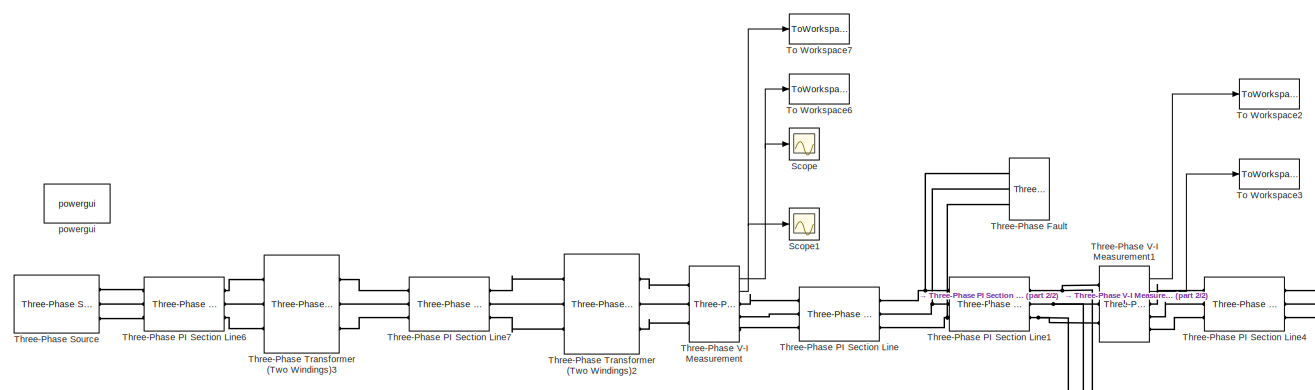
[diagram: root canvas - part 1/2, full width, top band]
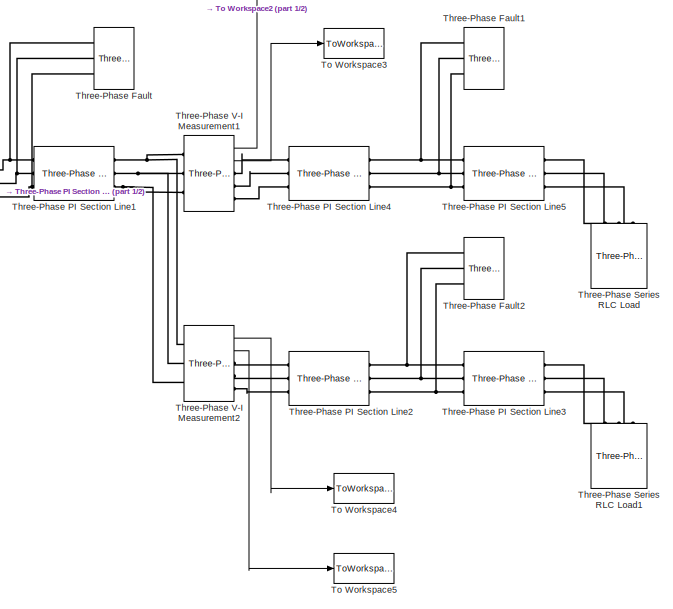
[diagram: root canvas - part 2/2, right side, full height]
MODEL slx_077e51596c99
KIND model
CONFIG AbsTol = auto
CONFIG FixedStep = auto
CONFIG MaxStep = auto
CONFIG MinStep = auto
CONFIG RelTol = 1e-3
CONFIG SampleTimeConstraint = Unconstrained
CONFIG Solver = ode45
CONFIG SolverMode = Auto
CONFIG SolverName = ode45
CONFIG StartTime = 0.0
CONFIG StopTime = 0.160
BLOCK [Scope] Scope
  Floating = off
  NumInputPorts = 1
  Ports = [1]
BLOCK [Scope] Scope1
  Floating = off
  NumInputPorts = 1
  Ports = [1]
  SaveName = ScopeData1
BLOCK [Reference] Three-Phase Fault  REF=powerlib/Elements/Three-Phase Fault
  External = off
  FaultA = off
  FaultB = off
  FaultC = off
  FaultResistance = 0.001
  GroundFault = off
  GroundResistance = 0.01
  InitialStates = 0
  Measurements = None
  Ports = [0, 0, 0, 0, 0, 3]
  SnubberCapacitance = inf
  SnubberResistance = 1e6
  SourceBlock = powerlib/Elements/Three-Phase Fault
  SourceType = Three-Phase Fault
  SwitchStatus = NaN
  SwitchTimes = [3/60  6/60]
BLOCK [Reference] Three-Phase Fault1  REF=powerlib/Elements/Three-Phase Fault
  External = off
  FaultA = off
  FaultB = on
  FaultC = off
  FaultResistance = 1
  GroundFault = on
  GroundResistance = 0.01
  InitialStates = 0
  Measurements = None
  Ports = [0, 0, 0, 0, 0, 3]
  SnubberCapacitance = inf
  SnubberResistance = 1e6
  SourceBlock = powerlib/Elements/Three-Phase Fault
  SourceType = Three-Phase Fault
  SwitchStatus = NaN
  SwitchTimes = [2/60  6/60]
BLOCK [Reference] Three-Phase Fault2  REF=powerlib/Elements/Three-Phase Fault
  External = off
  FaultA = off
  FaultB = off
  FaultC = off
  FaultResistance = 0.001
  GroundFault = off
  GroundResistance = 0.01
  InitialStates = 0
  Measurements = None
  Ports = [0, 0, 0, 0, 0, 3]
  SnubberCapacitance = inf
  SnubberResistance = 1e6
  SourceBlock = powerlib/Elements/Three-Phase Fault
  SourceType = Three-Phase Fault
  SwitchStatus = NaN
  SwitchTimes = [6/60  8/60]
BLOCK [Reference] Three-Phase PI Section Line  REF=powerlib/Elements/Three-Phase
PI Section Line
  AttributesFormatString = \n
  Capacitances = [12.74e-9 7.751e-9]
  Frequency = 60
  Inductances = [ 0.9337e-3  4.1264e-3]
  LConnTagsString = a|b|c
  Length = 15
  Ports = [0, 0, 0, 0, 0, 3, 3]
  RConnTagsString = A|B|C
  Resistances = [ 0.01273 0.3864]
  SourceBlock = powerlib/Elements/Three-Phase\nPI Section Line
  SourceType = Three-Phase PI Section Line
BLOCK [Reference] Three-Phase PI Section Line1  REF=powerlib/Elements/Three-Phase
PI Section Line
  AttributesFormatString = \n
  Capacitances = [12.74e-9 7.751e-9]
  Frequency = 60
  Inductances = [ 0.9337e-3  4.1264e-3]
  LConnTagsString = a|b|c
  Length = 5
  Ports = [0, 0, 0, 0, 0, 3, 3]
  RConnTagsString = A|B|C
  Resistances = [ 0.01273 0.3864]
  SourceBlock = powerlib/Elements/Three-Phase\nPI Section Line
  SourceType = Three-Phase PI Section Line
BLOCK [Reference] Three-Phase PI Section Line2  REF=powerlib/Elements/Three-Phase
PI Section Line
  AttributesFormatString = \n
  Capacitances = [12.74e-9 7.751e-9]
  Frequency = 60
  Inductances = [ 4*0.9337e-3  4*4.1264e-3]
  LConnTagsString = a|b|c
  Length = 12
  Ports = [0, 0, 0, 0, 0, 3, 3]
  RConnTagsString = A|B|C
  Resistances = [ 4*0.01273 4*0.3864]
  SourceBlock = powerlib/Elements/Three-Phase\nPI Section Line
  SourceType = Three-Phase PI Section Line
BLOCK [Reference] Three-Phase PI Section Line3  REF=powerlib/Elements/Three-Phase
PI Section Line
  AttributesFormatString = \n
  Capacitances = [12.74e-9 7.751e-9]
  Frequency = 60
  Inductances = [ 4*0.9337e-3  4*4.1264e-3]
  LConnTagsString = a|b|c
  Length = 8
  Ports = [0, 0, 0, 0, 0, 3, 3]
  RConnTagsString = A|B|C
  Resistances = [ 4*0.01273 4*0.3864]
  SourceBlock = powerlib/Elements/Three-Phase\nPI Section Line
  SourceType = Three-Phase PI Section Line
BLOCK [Reference] Three-Phase PI Section Line4  REF=powerlib/Elements/Three-Phase
PI Section Line
  AttributesFormatString = \n
  Capacitances = [12.74e-9 7.751e-9]
  Frequency = 60
  Inductances = [ 2*0.9337e-3  2*4.1264e-3]
  LConnTagsString = a|b|c
  Length = 0.1
  Ports = [0, 0, 0, 0, 0, 3, 3]
  RConnTagsString = A|B|C
  Resistances = [ 2*0.01273 2*0.3864]
  SourceBlock = powerlib/Elements/Three-Phase\nPI Section Line
  SourceType = Three-Phase PI Section Line
BLOCK [Reference] Three-Phase PI Section Line5  REF=powerlib/Elements/Three-Phase
PI Section Line
  AttributesFormatString = \n
  Capacitances = [12.74e-9 7.751e-9]
  Frequency = 60
  Inductances = [ 2*0.9337e-3  2*4.1264e-3]
  LConnTagsString = a|b|c
  Length = 19.9
  Ports = [0, 0, 0, 0, 0, 3, 3]
  RConnTagsString = A|B|C
  Resistances = [ 2*0.01273 2*0.3864]
  SourceBlock = powerlib/Elements/Three-Phase\nPI Section Line
  SourceType = Three-Phase PI Section Line
BLOCK [Reference] Three-Phase PI Section Line6  REF=powerlib/Elements/Three-Phase
PI Section Line
  AttributesFormatString = \n
  Capacitances = [12.74e-9 7.751e-9]
  Frequency = 60
  Inductances = [ 0.9337e-3  4.1264e-3]
  LConnTagsString = a|b|c
  Length = 50
  Ports = [0, 0, 0, 0, 0, 3, 3]
  RConnTagsString = A|B|C
  Resistances = [ 0.01273 0.3864]
  SourceBlock = powerlib/Elements/Three-Phase\nPI Section Line
  SourceType = Three-Phase PI Section Line
BLOCK [Reference] Three-Phase PI Section Line7  REF=powerlib/Elements/Three-Phase
PI Section Line
  AttributesFormatString = \n
  Capacitances = [12.74e-9 7.751e-9]
  Frequency = 60
  Inductances = [ 0.9337e-3  4.1264e-3]
  LConnTagsString = a|b|c
  Length = 100
  Ports = [0, 0, 0, 0, 0, 3, 3]
  RConnTagsString = A|B|C
  Resistances = [ 0.01273 0.3864]
  SourceBlock = powerlib/Elements/Three-Phase\nPI Section Line
  SourceType = Three-Phase PI Section Line
BLOCK [Reference] Three-Phase Series RLC Load  REF=powerlib/Elements/Three-Phase
Series RLC Load
  ActivePower = 100e3
  AttributesFormatString = \n
  CapacitivePower = 0
  Configuration = Y (grounded)
  InductivePower = 0
  LConnTagsString = A|B|C
  LoadType = constant Z
  Measurements = None
  NominalFrequency = 60
  NominalVoltage = 13800
  Ports = [0, 0, 0, 0, 0, 3]
  SourceBlock = powerlib/Elements/Three-Phase\nSeries RLC Load
  SourceType = Three-Phase Series RLC Load
BLOCK [Reference] Three-Phase Series RLC Load1  REF=powerlib/Elements/Three-Phase
Series RLC Load
  ActivePower = 100e3
  AttributesFormatString = \n
  CapacitivePower = 0
  Configuration = Y (grounded)
  InductivePower = 0
  LConnTagsString = A|B|C
  LoadType = constant Z
  Measurements = None
  NominalFrequency = 60
  NominalVoltage = 13800
  Ports = [0, 0, 0, 0, 0, 3]
  SourceBlock = powerlib/Elements/Three-Phase\nSeries RLC Load
  SourceType = Three-Phase Series RLC Load
BLOCK [Reference] Three-Phase Source  REF=powerlib/Electrical
Sources/Three-Phase Source
  BaseVoltage = 13.2e3
  BusType = swing
  Frequency = 60
  Inductance = 16.58e-3
  InternalConnection = Yg
  PhaseAngle = 0
  Ports = [0, 0, 0, 0, 0, 0, 3]
  Pref = 0
  Qmax = inf
  Qmin = -inf
  Qref = 0
  Resistance = 0.8929
  ShortCircuitLevel = 100e6
  SourceBlock = powerlib/Electrical\nSources/Three-Phase Source
  SourceType = Three-Phase Source
  SpecifyImpedance = on
  Voltage = 115000
  XRratio = 7
BLOCK [Reference] Three-Phase Transformer (Two Windings)2  REF=powerlib/Elements/Three-Phase
Transformer
(Two Windings)
  BreakLoop = off
  CoreType = Three single-phase transformers
  DataFile = 'hysteresis'
  DataType = off
  Hysteresis = off
  InitialFluxes = [ 0.8 , -0.8 , 0.7 ]
  L0 = 0.5
  Lm = 500
  Measurements = None
  MoreParameters = off
  NominalPower = [ 5e6 , 60 ]
  Ports = [0, 0, 0, 0, 0, 3, 3]
  Rm = 500
  Saturation = [ 0,0 ; 0.0024,1.2 ; 1.0,1.52 ]
  SetInitialFlux = off
  SetSaturation = off
  SourceBlock = powerlib/Elements/Three-Phase\nTransformer\n(Two Windings)
  SourceType = Three-Phase Transformer (Two Windings)
  TransfoNumber = 1
  UNITS = pu
  Winding1 = [ 34500 , 0 , 0.0273 ]
  Winding1Connection = Yg
  Winding2 = [ 13800 , 0 , 0.0273 ]
  Winding2Connection = Yg
BLOCK [Reference] Three-Phase Transformer (Two Windings)3  REF=powerlib/Elements/Three-Phase
Transformer
(Two Windings)
  BreakLoop = off
  CoreType = Three single-phase transformers
  DataFile = 'hysteresis'
  DataType = off
  Hysteresis = off
  InitialFluxes = [ 0.8 , -0.8 , 0.7 ]
  L0 = 0.5
  Lm = 500
  Measurements = None
  MoreParameters = off
  NominalPower = [ 40e6 , 60 ]
  Ports = [0, 0, 0, 0, 0, 3, 3]
  Rm = 500
  Saturation = [ 0,0 ; 0.0024,1.2 ; 1.0,1.52 ]
  SetInitialFlux = off
  SetSaturation = off
  SourceBlock = powerlib/Elements/Three-Phase\nTransformer\n(Two Windings)
  SourceType = Three-Phase Transformer (Two Windings)
  TransfoNumber = 1
  UNITS = pu
  Winding1 = [ 115000 , 0 , 0.06 ]
  Winding1Connection = Yg
  Winding2 = [ 34500 , 0 , 0.06 ]
  Winding2Connection = Yg
BLOCK [Reference] Three-Phase V-I Measurement  REF=powerlib/Measurements/Three-Phase
V-I Measurement
  CurrentMeasurement = yes
  Ipu = off
  LabelI = Iabc
  LabelV = Vabc
  OutputType = Complex
  PSBequivalent = 0
  Pbase = 100e6
  PhasorSimulation = off
  Ports = [0, 2, 0, 0, 0, 3, 3]
  SetLabelI = off
  SetLabelV = off
  SourceBlock = powerlib/Measurements/Three-Phase\nV-I Measurement
  SourceType = Three-Phase VI Measurement
  Vbase = 500e3
  VoltageMeasurement = phase-to-ground
  Vpu = off
  VpuLL = off
BLOCK [Reference] Three-Phase V-I Measurement1  REF=powerlib/Measurements/Three-Phase
V-I Measurement
  CurrentMeasurement = yes
  Ipu = off
  LabelI = Iabc
  LabelV = Vabc
  OutputType = Complex
  PSBequivalent = 0
  Pbase = 100e6
  PhasorSimulation = off
  Ports = [0, 2, 0, 0, 0, 3, 3]
  SetLabelI = off
  SetLabelV = off
  SourceBlock = powerlib/Measurements/Three-Phase\nV-I Measurement
  SourceType = Three-Phase VI Measurement
  Vbase = 500e3
  VoltageMeasurement = phase-to-ground
  Vpu = off
  VpuLL = off
BLOCK [Reference] Three-Phase V-I Measurement2  REF=powerlib/Measurements/Three-Phase
V-I Measurement
  CurrentMeasurement = yes
  Ipu = off
  LabelI = Iabc
  LabelV = Vabc
  OutputType = Complex
  PSBequivalent = 0
  Pbase = 100e6
  PhasorSimulation = off
  Ports = [0, 2, 0, 0, 0, 3, 3]
  SetLabelI = off
  SetLabelV = off
  SourceBlock = powerlib/Measurements/Three-Phase\nV-I Measurement
  SourceType = Three-Phase VI Measurement
  Vbase = 500e3
  VoltageMeasurement = phase-to-ground
  Vpu = off
  VpuLL = off
BLOCK [ToWorkspace] To Workspace2
  FixptAsFi = on
  MaxDataPoints = inf
  Ports = [1]
  SampleTime = -1
  Save2DSignal = 3-D array (concatenate along third dimension)
  VariableName = V2
BLOCK [ToWorkspace] To Workspace3
  FixptAsFi = on
  MaxDataPoints = inf
  Ports = [1]
  SampleTime = -1
  Save2DSignal = 3-D array (concatenate along third dimension)
  VariableName = I2
BLOCK [ToWorkspace] To Workspace4
  FixptAsFi = on
  MaxDataPoints = inf
  Ports = [1]
  SampleTime = -1
  Save2DSignal = 3-D array (concatenate along third dimension)
  VariableName = V3
BLOCK [ToWorkspace] To Workspace5
  FixptAsFi = on
  MaxDataPoints = inf
  Ports = [1]
  SampleTime = -1
  Save2DSignal = 3-D array (concatenate along third dimension)
  VariableName = I3
BLOCK [ToWorkspace] To Workspace6
  FixptAsFi = on
  MaxDataPoints = inf
  Ports = [1]
  SampleTime = -1
  Save2DSignal = 3-D array (concatenate along third dimension)
  VariableName = V1
BLOCK [ToWorkspace] To Workspace7
  FixptAsFi = on
  MaxDataPoints = inf
  Ports = [1]
  SampleTime = -1
  Save2DSignal = 3-D array (concatenate along third dimension)
  VariableName = I1
BLOCK [Reference] powergui  REF=powerlib/powergui
  DisableRonSwitches = off
  DisableSnubberDevices = off
  DisableVfSwitches = off
  DisplayEquations = off
  DisplayStyle = 1
  EnableUseOfTLC = off
  ErrMax = 1e-4
  Frange = [0:2:500]
  FreqAxis = off
  FunctionMessages = off
  HookPort = off
  Interpol = off
  Iterations = 50
  MaxFrequency = 1000
  Pbase = 100e6
  Ports = []
  Priority = 1
  ResistiveCurrentMeasurement = off
  RestoreLinks = warning
  RmsSteady = 1
  SPID = off
  SampleTime = 1/(32*60)
  ShowGrid = off
  SolverType = Tustin/Backward Euler (TBE)
  SourceBlock = powerlib/powergui
  SourceType = PSB option menu block
  StartTime = 0.0
  SwTol = 0
  Ts = 100
  UnitsV = kV
  UnitsW = MW
  UserDataPersistent = on
  Xlog = on
  Ylog = off
  ZoomFFT = off
  buscounter = 0
  cycles = 1
  display = off
  echomessages = off
  frequency = 60
  frequencyindice = 0
  frequencyindicesteady = 1
  fundamental = 60
  methode = off
  save = off
  structure = 0
  variable = ZData
  x0status = blocks
LINE Three-Phase V-I Measurement1:1 -> To Workspace2:1
LINE Three-Phase V-I Measurement1:2 -> To Workspace3:1
LINE Three-Phase V-I Measurement2:1 -> To Workspace4:1
LINE Three-Phase V-I Measurement2:2 -> To Workspace5:1
NET Three-Phase V-I Measurement:1 -> Scope:1, To Workspace6:1
NET Three-Phase V-I Measurement:2 -> Scope1:1, To Workspace7:1
PNET net1: Three-Phase Fault1:LConn1 -- Three-Phase PI Section Line4:RConn1 -- Three-Phase PI Section Line5:LConn1
PNET net2: Three-Phase Fault1:LConn2 -- Three-Phase PI Section Line4:RConn2 -- Three-Phase PI Section Line5:LConn2
PNET net3: Three-Phase Fault1:LConn3 -- Three-Phase PI Section Line4:RConn3 -- Three-Phase PI Section Line5:LConn3
PNET net4: Three-Phase Fault2:LConn1 -- Three-Phase PI Section Line2:RConn1 -- Three-Phase PI Section Line3:LConn1
PNET net5: Three-Phase Fault2:LConn2 -- Three-Phase PI Section Line2:RConn2 -- Three-Phase PI Section Line3:LConn2
PNET net6: Three-Phase Fault2:LConn3 -- Three-Phase PI Section Line2:RConn3 -- Three-Phase PI Section Line3:LConn3
PNET net7: Three-Phase Fault:LConn1 -- Three-Phase PI Section Line1:LConn1 -- Three-Phase PI Section Line:RConn1
PNET net8: Three-Phase Fault:LConn2 -- Three-Phase PI Section Line1:LConn2 -- Three-Phase PI Section Line:RConn2
PNET net9: Three-Phase Fault:LConn3 -- Three-Phase PI Section Line1:LConn3 -- Three-Phase PI Section Line:RConn3
PNET net10: Three-Phase PI Section Line1:RConn1 -- Three-Phase V-I Measurement1:LConn1 -- Three-Phase V-I Measurement2:LConn1
PNET net11: Three-Phase PI Section Line1:RConn2 -- Three-Phase V-I Measurement1:LConn2 -- Three-Phase V-I Measurement2:LConn2
PNET net12: Three-Phase PI Section Line1:RConn3 -- Three-Phase V-I Measurement1:LConn3 -- Three-Phase V-I Measurement2:LConn3
PLINE Three-Phase PI Section Line2:LConn1 -- Three-Phase V-I Measurement2:RConn1
PLINE Three-Phase PI Section Line2:LConn2 -- Three-Phase V-I Measurement2:RConn2
PLINE Three-Phase PI Section Line2:LConn3 -- Three-Phase V-I Measurement2:RConn3
PLINE Three-Phase PI Section Line3:RConn1 -- Three-Phase Series RLC Load1:LConn1
PLINE Three-Phase PI Section Line3:RConn2 -- Three-Phase Series RLC Load1:LConn2
PLINE Three-Phase PI Section Line3:RConn3 -- Three-Phase Series RLC Load1:LConn3
PLINE Three-Phase PI Section Line4:LConn1 -- Three-Phase V-I Measurement1:RConn1
PLINE Three-Phase PI Section Line4:LConn2 -- Three-Phase V-I Measurement1:RConn2
PLINE Three-Phase PI Section Line4:LConn3 -- Three-Phase V-I Measurement1:RConn3
PLINE Three-Phase PI Section Line5:RConn1 -- Three-Phase Series RLC Load:LConn1
PLINE Three-Phase PI Section Line5:RConn2 -- Three-Phase Series RLC Load:LConn2
PLINE Three-Phase PI Section Line5:RConn3 -- Three-Phase Series RLC Load:LConn3
PLINE Three-Phase PI Section Line6:LConn1 -- Three-Phase Source:RConn1
PLINE Three-Phase PI Section Line6:LConn2 -- Three-Phase Source:RConn2
PLINE Three-Phase PI Section Line6:LConn3 -- Three-Phase Source:RConn3
PLINE Three-Phase PI Section Line6:RConn1 -- Three-Phase Transformer (Two Windings)3:LConn1
PLINE Three-Phase PI Section Line6:RConn2 -- Three-Phase Transformer (Two Windings)3:LConn2
PLINE Three-Phase PI Section Line6:RConn3 -- Three-Phase Transformer (Two Windings)3:LConn3
PLINE Three-Phase PI Section Line7:LConn1 -- Three-Phase Transformer (Two Windings)3:RConn1
PLINE Three-Phase PI Section Line7:LConn2 -- Three-Phase Transformer (Two Windings)3:RConn2
PLINE Three-Phase PI Section Line7:LConn3 -- Three-Phase Transformer (Two Windings)3:RConn3
PLINE Three-Phase PI Section Line7:RConn1 -- Three-Phase Transformer (Two Windings)2:LConn1
PLINE Three-Phase PI Section Line7:RConn2 -- Three-Phase Transformer (Two Windings)2:LConn2
PLINE Three-Phase PI Section Line7:RConn3 -- Three-Phase Transformer (Two Windings)2:LConn3
PLINE Three-Phase PI Section Line:LConn1 -- Three-Phase V-I Measurement:RConn1
PLINE Three-Phase PI Section Line:LConn2 -- Three-Phase V-I Measurement:RConn2
PLINE Three-Phase PI Section Line:LConn3 -- Three-Phase V-I Measurement:RConn3
PLINE Three-Phase Transformer (Two Windings)2:RConn1 -- Three-Phase V-I Measurement:LConn1
PLINE Three-Phase Transformer (Two Windings)2:RConn2 -- Three-Phase V-I Measurement:LConn2
PLINE Three-Phase Transformer (Two Windings)2:RConn3 -- Three-Phase V-I Measurement:LConn3
note: NET lines group one-source signal fan-out (src -> all destinations, sorted); 1:1 wires keep LINE; PNET lines group multi-terminal physical nets as a canonical sorted terminal list (undirected conserving connections); 2-terminal nets keep the pairwise PLINE form
